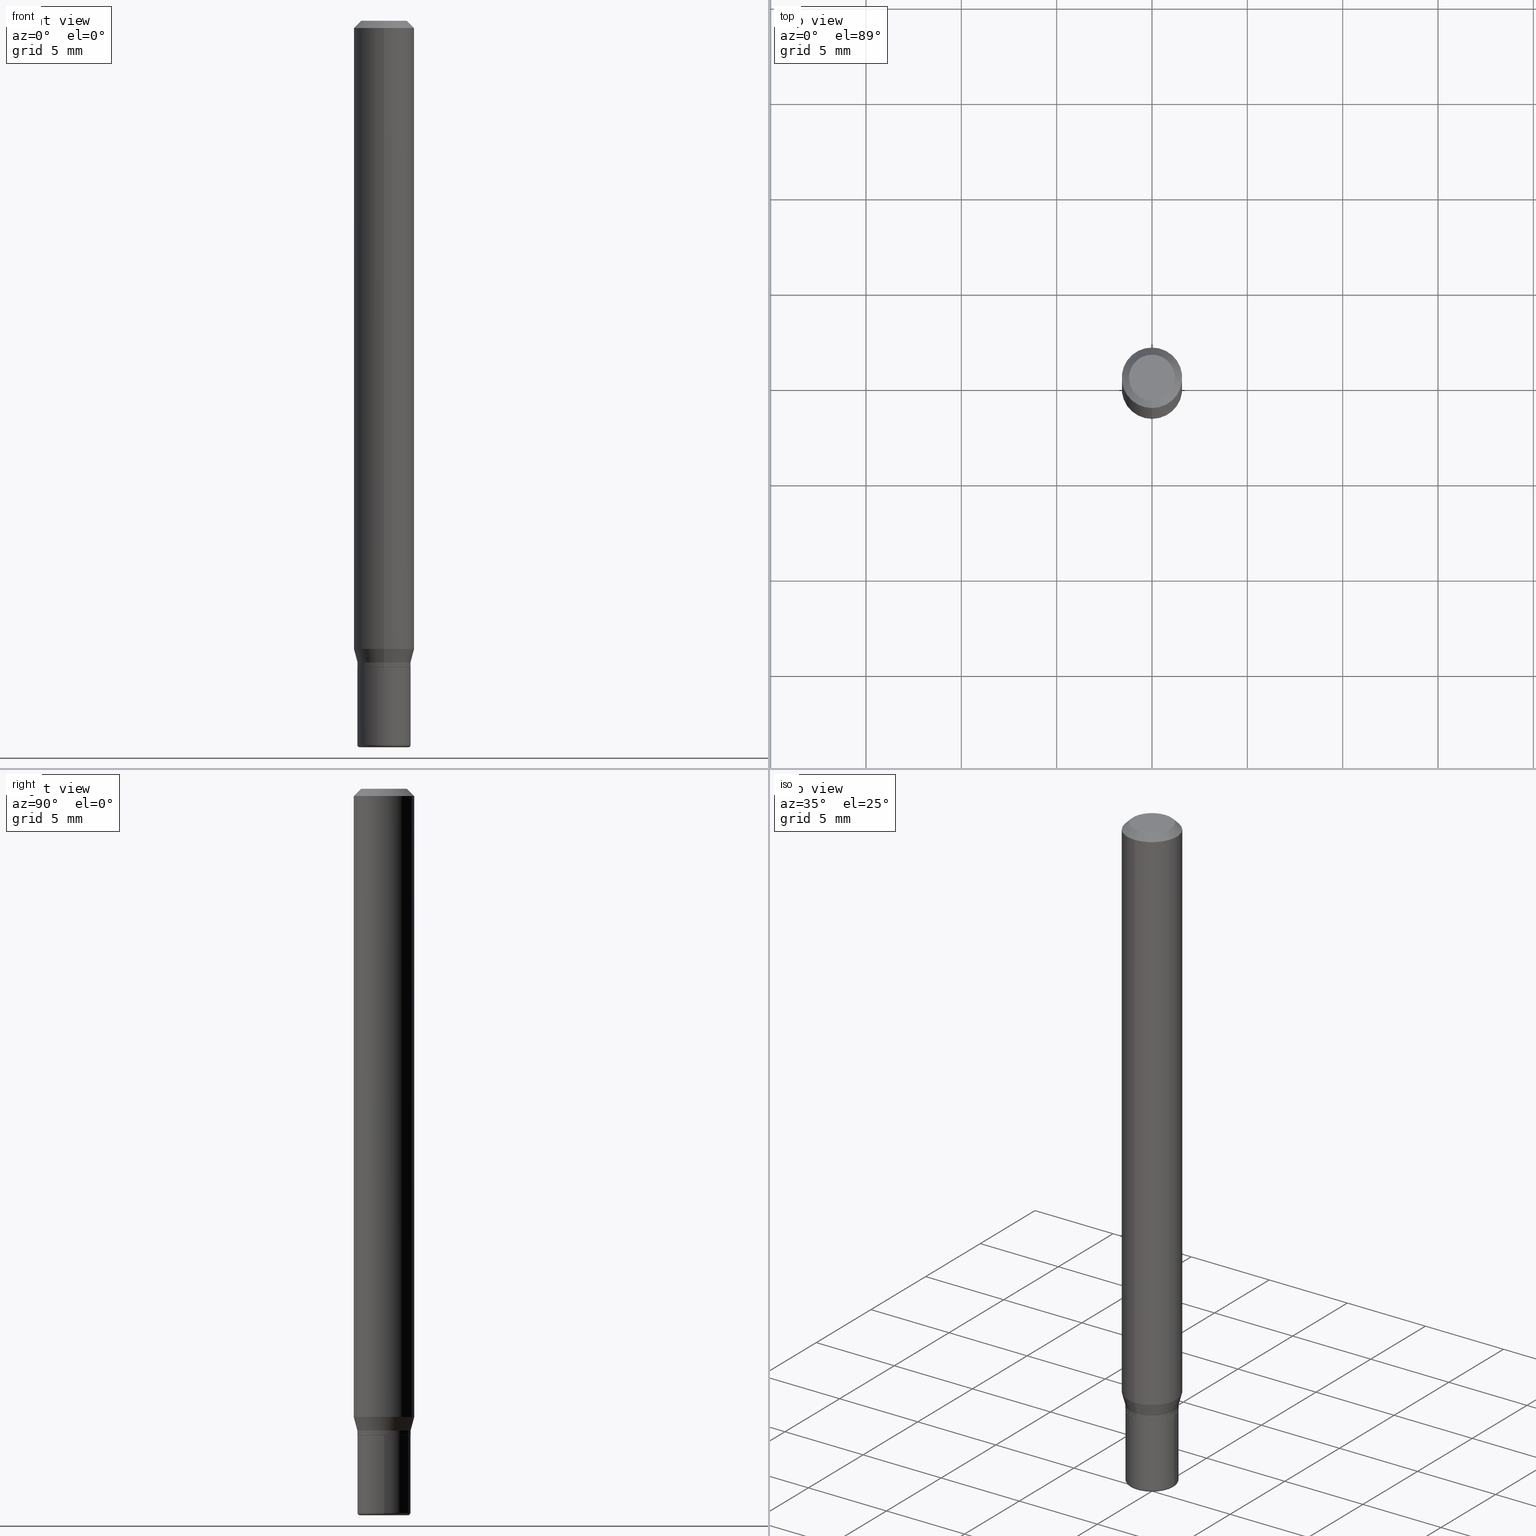
[diagram: canonical four-view strip — front | top / right | iso, engineering-drawing reading convention]
A machine part, canonical four-view strip (front | top / right | iso — engineering-drawing reading convention). The complete STEP part file that produces these views, byte-faithful:
ISO-10303-21;
HEADER;
FILE_DESCRIPTION (( 'STEP AP203' ),
    '1' );
FILE_NAME ('09096.STEP',
    '2024-02-29T22:05:15',
    ( '' ),
    ( '' ),
    'SwSTEP 2.0',
    'SolidWorks 2023',
    '' );
FILE_SCHEMA (( 'CONFIG_CONTROL_DESIGN' ));
ENDSEC;

DATA;
#1 = AXIS2_PLACEMENT_3D ( 'NONE', #233, #202, #466 ) ;
#2 = EDGE_LOOP ( 'NONE', ( #170, #485, #367, #459 ) ) ;
#3 = EDGE_LOOP ( 'NONE', ( #322, #10, #500, #210 ) ) ;
#4 = CYLINDRICAL_SURFACE ( 'NONE', #514, 0.06250000000000000000 ) ;
#5 = CIRCLE ( 'NONE', #376, 0.05450000000000009698 ) ;
#6 = CARTESIAN_POINT ( 'NONE',  ( 3.907985046680882364E-16, 0.05499999999999548306, -1.325000000000000844 ) ) ;
#7 = AXIS2_PLACEMENT_3D ( 'NONE', #481, #54, #406 ) ;
#8 = PRODUCT_RELATED_PRODUCT_CATEGORY ( 'detail', '', ( #272 ) ) ;
#9 = FACE_OUTER_BOUND ( 'NONE', #127, .T. ) ;
#10 = ORIENTED_EDGE ( 'NONE', *, *, #382, .T. ) ;
#11 = CARTESIAN_POINT ( 'NONE',  ( 3.240240083797181082E-29, -4.626221487171588322E-15, -1.325000000000000400 ) ) ;
#12 = PERSON_AND_ORGANIZATION_ROLE ( 'design_supplier' ) ;
#13 = ORIENTED_EDGE ( 'NONE', *, *, #47, .F. ) ;
#14 = DIRECTION ( 'NONE',  ( 6.982962677686265922E-15, 1.000000000000000000, -3.483106191921935554E-15 ) ) ;
#15 = APPLICATION_CONTEXT ( 'configuration controlled 3d designs of mechanical parts and assemblies' ) ;
#16 = PERSON_AND_ORGANIZATION_ROLE ( 'design_owner' ) ;
#17 = DIRECTION ( 'NONE',  ( -6.982962677686265133E-15, -1.000000000000000000, 4.966996352116832032E-15 ) ) ;
#18 = CLOSED_SHELL ( 'NONE', ( #418, #446, #248, #259, #279, #448, #408, #78, #477, #302, #108, #340 ) ) ;
#19 = VECTOR ( 'NONE', #178, 39.37007874015748143 ) ;
#20 = PERSON_AND_ORGANIZATION ( #29, #177 ) ;
#21 = CARTESIAN_POINT ( 'NONE',  ( 4.174438572590912774E-16, 0.05499999999999548306, -1.325000000000000844 ) ) ;
#22 = CALENDAR_DATE ( 2024, 29, 2 ) ;
#23 = CARTESIAN_POINT ( 'NONE',  ( 3.668196321279753512E-31, -5.237231872269617697E-17, -0.01499999999999970281 ) ) ;
#24 = EDGE_CURVE ( 'NONE', #89, #211, #445, .T. ) ;
#25 = APPLICATION_PROTOCOL_DEFINITION ( 'international standard', 'config_control_design', 1994, #195 ) ;
#26 = ORIENTED_EDGE ( 'NONE', *, *, #427, .T. ) ;
#27 = CARTESIAN_POINT ( 'NONE',  ( -3.773273898774340269E-16, -0.04750000000000000749, 4.390307876817926139E-16 ) ) ;
#28 = CONICAL_SURFACE ( 'NONE', #327, 0.06250000000000000000, 0.7853981633974488341 ) ;
#29 = PERSON ( 'UNSPECIFIED', 'UNSPECIFIED', 'UNSPECIFIED', ('UNSPECIFIED'), ('UNSPECIFIED'), ('UNSPECIFIED') ) ;
#30 = CIRCLE ( 'NONE', #401, 0.05450000000000009698 ) ;
#31 = LINE ( 'NONE', #200, #285 ) ;
#32 = VERTEX_POINT ( 'NONE', #185 ) ;
#33 = DIRECTION ( 'NONE',  ( -2.445464214186550861E-29, 3.491487914846480807E-15, 1.000000000000000000 ) ) ;
#34 = CARTESIAN_POINT ( 'NONE',  ( 3.840629472727447874E-16, 0.04750000000000000749, 1.073394357713768884E-16 ) ) ;
#35 = VECTOR ( 'NONE', #423, 39.37007874015748854 ) ;
#36 = TOROIDAL_SURFACE ( 'NONE', #245, 0.05000000000000000278, 0.005000000000000177046 ) ;
#37 = CONICAL_SURFACE ( 'NONE', #332, 0.05500000000000011130, 0.2617993877991481866 ) ;
#38 = FACE_OUTER_BOUND ( 'NONE', #288, .T. ) ;
#39 = ORIENTED_EDGE ( 'NONE', *, *, #384, .T. ) ;
#40 = CARTESIAN_POINT ( 'NONE',  ( 3.655975865246779122E-29, -5.219764601570503141E-15, -1.495000000000000107 ) ) ;
#41 = ORIENTED_EDGE ( 'NONE', *, *, #179, .F. ) ;
#42 = FACE_OUTER_BOUND ( 'NONE', #247, .T. ) ;
#43 = CIRCLE ( 'NONE', #7, 0.04999999999999999584 ) ;
#44 = ORIENTED_EDGE ( 'NONE', *, *, #317, .T. ) ;
#45 =( GEOMETRIC_REPRESENTATION_CONTEXT ( 3 ) GLOBAL_UNCERTAINTY_ASSIGNED_CONTEXT ( ( #306 ) ) GLOBAL_UNIT_ASSIGNED_CONTEXT ( ( #338, #352, #227 ) ) REPRESENTATION_CONTEXT ( 'NONE', 'WORKASPACE' ) );
#46 = ORIENTED_EDGE ( 'NONE', *, *, #122, .F. ) ;
#47 = EDGE_CURVE ( 'NONE', #168, #211, #223, .T. ) ;
#48 = DIRECTION ( 'NONE',  ( -6.982962677686265922E-15, -1.000000000000000000, 5.012565125989464495E-15 ) ) ;
#49 = EDGE_CURVE ( 'NONE', #168, #32, #387, .T. ) ;
#50 = DIRECTION ( 'NONE',  ( -6.982962677686265133E-15, -1.000000000000000000, 3.491487914846480413E-15 ) ) ;
#51 = EDGE_LOOP ( 'NONE', ( #465, #403 ) ) ;
#52 = DIRECTION ( 'NONE',  ( -6.982962677686265133E-15, -1.000000000000000000, 4.966996352116832032E-15 ) ) ;
#53 = AXIS2_PLACEMENT_3D ( 'NONE', #235, #511, #154 ) ;
#54 = DIRECTION ( 'NONE',  ( -2.445468806185136597E-29, 3.491481338843145583E-15, 1.000000000000000000 ) ) ;
#55 = CARTESIAN_POINT ( 'NONE',  ( 3.582686580359767159E-29, -5.359686688179454114E-15, -1.500000000000000444 ) ) ;
#56 = CARTESIAN_POINT ( 'NONE',  ( 3.907985046680557945E-16, 0.05500000000000010436, -1.920318353165568171E-16 ) ) ;
#57 = CALENDAR_DATE ( 2024, 29, 2 ) ;
#58 = DIRECTION ( 'NONE',  ( -2.438088387897960049E-29, 3.491481338843145188E-15, 1.000000000000000000 ) ) ;
#59 = CIRCLE ( 'NONE', #174, 0.05500000000000011130 ) ;
#60 = EDGE_CURVE ( 'NONE', #89, #333, #155, .T. ) ;
#61 = DIRECTION ( 'NONE',  ( -2.445468806185136597E-29, 3.491481338843145583E-15, 1.000000000000000000 ) ) ;
#62 = DIRECTION ( 'NONE',  ( -2.445468806185136877E-29, 3.491481338843145188E-15, 1.000000000000000000 ) ) ;
#63 = ORIENTED_EDGE ( 'NONE', *, *, #100, .F. ) ;
#64 = DIRECTION ( 'NONE',  ( 0.000000000000000000, 0.000000000000000000, 1.000000000000000000 ) ) ;
#65 = FACE_OUTER_BOUND ( 'NONE', #280, .T. ) ;
#66 = EDGE_CURVE ( 'NONE', #184, #366, #253, .T. ) ;
#67 = PERSON_AND_ORGANIZATION ( #29, #177 ) ;
#68 = CARTESIAN_POINT ( 'NONE',  ( 0.000000000000000000, 0.000000000000000000, 0.000000000000000000 ) ) ;
#69 = CALENDAR_DATE ( 2024, 29, 2 ) ;
#70 = DIRECTION ( 'NONE',  ( -6.982962677686265133E-15, -1.000000000000000000, 4.966996352116833610E-15 ) ) ;
#71 = DATE_AND_TIME ( #69, #277 ) ;
#72 = DIRECTION ( 'NONE',  ( -6.982962677686265133E-15, -1.000000000000000000, 4.966996352116832032E-15 ) ) ;
#73 = ORIENTED_EDGE ( 'NONE', *, *, #413, .F. ) ;
#74 = AXIS2_PLACEMENT_3D ( 'NONE', #334, #95, #48 ) ;
#75 = AXIS2_PLACEMENT_3D ( 'NONE', #392, #262, #468 ) ;
#76 = CC_DESIGN_APPROVAL ( #86, ( #269 ) ) ;
#77 = DIRECTION ( 'NONE',  ( 1.000000000000000000, -6.982962677686274599E-15, 0.000000000000000000 ) ) ;
#78 = ADVANCED_FACE ( 'NONE', ( #417 ), #28, .T. ) ;
#79 = VERTEX_POINT ( 'NONE', #499 ) ;
#80 = CARTESIAN_POINT ( 'NONE',  ( 0.05500000000000000028, -5.045190534628344107E-15, -1.335000000000000187 ) ) ;
#81 = ORIENTED_EDGE ( 'NONE', *, *, #114, .T. ) ;
#82 = ORIENTED_EDGE ( 'NONE', *, *, #179, .T. ) ;
#83 = AXIS2_PLACEMENT_3D ( 'NONE', #337, #220, #17 ) ;
#84 = ORIENTED_EDGE ( 'NONE', *, *, #402, .T. ) ;
#85 = CC_DESIGN_SECURITY_CLASSIFICATION ( #344, ( #269 ) ) ;
#86 = APPROVAL ( #192, 'UNSPECIFIED' ) ;
#87 = LINE ( 'NONE', #428, #205 ) ;
#88 = CARTESIAN_POINT ( 'NONE',  ( -0.05500000000000009742, 3.907985046680557945E-16, -2.705414299640202916E-30 ) ) ;
#89 = VERTEX_POINT ( 'NONE', #457 ) ;
#90 = CARTESIAN_POINT ( 'NONE',  ( -0.05500000000000000028, -4.549647589794996077E-15, -1.335000000000000187 ) ) ;
#91 = CARTESIAN_POINT ( 'NONE',  ( 4.440892098500945650E-16, 0.06249999999999995143, -0.01499999999999992138 ) ) ;
#92 = VERTEX_POINT ( 'NONE', #139 ) ;
#93 = DIRECTION ( 'NONE',  ( 1.000000000000000000, -6.982962677686265922E-15, 4.876176775795935793E-29 ) ) ;
#94 = TOROIDAL_SURFACE ( 'NONE', #157, 0.05000000000000000278, 0.005000000000000177046 ) ;
#95 = DIRECTION ( 'NONE',  ( -2.445464214186550861E-29, 3.491487914846480807E-15, 1.000000000000000000 ) ) ;
#96 = DIRECTION ( 'NONE',  ( 6.982962677686265922E-15, 1.000000000000000000, -3.491487914846480807E-15 ) ) ;
#97 = DIRECTION ( 'NONE',  ( -2.445464214186550861E-29, 3.491487914846480807E-15, 1.000000000000000000 ) ) ;
#98 = ADVANCED_FACE ( 'NONE', ( #460 ), #128, .F. ) ;
#99 = ORIENTED_EDGE ( 'NONE', *, *, #453, .F. ) ;
#100 = EDGE_CURVE ( 'NONE', #211, #168, #59, .T. ) ;
#101 = FACE_OUTER_BOUND ( 'NONE', #51, .T. ) ;
#102 = AXIS2_PLACEMENT_3D ( 'NONE', #489, #414, #290 ) ;
#103 = LOCAL_TIME ( 17, 5, 15.00000000000000000, #383 ) ;
#104 = CC_DESIGN_APPROVAL ( #208, ( #344 ) ) ;
#105 = DIRECTION ( 'NONE',  ( -2.445464214186550861E-29, 3.491487914846480807E-15, 1.000000000000000000 ) ) ;
#106 = SECURITY_CLASSIFICATION_LEVEL ( 'unclassified' ) ;
#107 = DIRECTION ( 'NONE',  ( -6.982962677686265133E-15, -1.000000000000000000, 3.491487914846480807E-15 ) ) ;
#108 = ADVANCED_FACE ( 'NONE', ( #216 ), #303, .T. ) ;
#109 = DIRECTION ( 'NONE',  ( 4.937700262164550409E-15, 0.7071067811865454633, -0.7071067811865495711 ) ) ;
#110 = CC_DESIGN_PERSON_AND_ORGANIZATION_ASSIGNMENT ( #20, #12, ( #269 ) ) ;
#111 = CIRCLE ( 'NONE', #410, 0.005000000000000177046 ) ;
#112 = DIRECTION ( 'NONE',  ( -6.982962677686265922E-15, -1.000000000000000000, 4.370956789862821150E-15 ) ) ;
#113 = CARTESIAN_POINT ( 'NONE',  ( 0.000000000000000000, 0.000000000000000000, 0.000000000000000000 ) ) ;
#114 = EDGE_CURVE ( 'NONE', #181, #364, #5, .T. ) ;
#115 = DIRECTION ( 'NONE',  ( 2.445464214186550581E-29, -3.491487914846480807E-15, -1.000000000000000000 ) ) ;
#116 = ORIENTED_EDGE ( 'NONE', *, *, #66, .F. ) ;
#117 = AXIS2_PLACEMENT_3D ( 'NONE', #221, #331, #50 ) ;
#118 = AXIS2_PLACEMENT_3D ( 'NONE', #183, #64, #493 ) ;
#119 = LINE ( 'NONE', #88, #167 ) ;
#120 = ORIENTED_EDGE ( 'NONE', *, *, #372, .F. ) ;
#121 = EDGE_LOOP ( 'NONE', ( #416, #124, #452, #13 ) ) ;
#122 = EDGE_CURVE ( 'NONE', #181, #89, #496, .T. ) ;
#123 = DIMENSIONAL_EXPONENTS ( 1.000000000000000000, 0.000000000000000000, 0.000000000000000000, 0.000000000000000000, 0.000000000000000000, 0.000000000000000000, 0.000000000000000000 ) ;
#124 = ORIENTED_EDGE ( 'NONE', *, *, #324, .T. ) ;
#125 = CONICAL_SURFACE ( 'NONE', #361, 0.05450000000000009698, 0.7853981633972775267 ) ;
#126 = CARTESIAN_POINT ( 'NONE',  ( 3.264694725939045834E-29, -4.661136366320052731E-15, -1.335000000000000187 ) ) ;
#127 = EDGE_LOOP ( 'NONE', ( #169, #370, #374, #316 ) ) ;
#128 = PLANE ( 'NONE',  #399 ) ;
#129 = FACE_OUTER_BOUND ( 'NONE', #175, .T. ) ;
#130 = ORIENTED_EDGE ( 'NONE', *, *, #264, .F. ) ;
#131 = EDGE_CURVE ( 'NONE', #92, #79, #504, .T. ) ;
#132 = DIRECTION ( 'NONE',  ( -2.445464214186550861E-29, 3.491487914846480807E-15, 1.000000000000000000 ) ) ;
#133 = PERSON_AND_ORGANIZATION ( #29, #177 ) ;
#134 = DIRECTION ( 'NONE',  ( -4.937700262163704750E-15, -0.7071067811864243380, 0.7071067811866706965 ) ) ;
#135 = CONICAL_SURFACE ( 'NONE', #146, 0.05500000000000011130, 0.2617993877991481866 ) ;
#136 = APPROVAL_PERSON_ORGANIZATION ( #196, #297, #137 ) ;
#137 = APPROVAL_ROLE ( '' ) ;
#138 = ORIENTED_EDGE ( 'NONE', *, *, #122, .T. ) ;
#139 = CARTESIAN_POINT ( 'NONE',  ( 0.05500000000000018069, -5.603827548843249703E-15, -1.495000000000000107 ) ) ;
#140 = CALENDAR_DATE ( 2024, 29, 2 ) ;
#141 = ORIENTED_EDGE ( 'NONE', *, *, #495, .F. ) ;
#142 = DIRECTION ( 'NONE',  ( -2.445464214186550861E-29, 3.491487914846480807E-15, 1.000000000000000000 ) ) ;
#143 = EDGE_CURVE ( 'NONE', #333, #168, #450, .T. ) ;
#144 = CYLINDRICAL_SURFACE ( 'NONE', #1, 0.06250000000000000000 ) ;
#145 = VECTOR ( 'NONE', #134, 39.37007874015748143 ) ;
#146 = AXIS2_PLACEMENT_3D ( 'NONE', #152, #312, #438 ) ;
#147 = APPROVAL_DATE_TIME ( #266, #297 ) ;
#148 = VERTEX_POINT ( 'NONE', #299 ) ;
#149 = ADVANCED_FACE ( 'NONE', ( #463 ), #36, .T. ) ;
#150 = MANIFOLD_SOLID_BREP ( 'Body-Move/Copy2[2]', #18 ) ;
#151 = DIRECTION ( 'NONE',  ( -2.445464214186550861E-29, 3.491487914846480807E-15, 1.000000000000000000 ) ) ;
#152 = CARTESIAN_POINT ( 'NONE',  ( 3.240240083797181082E-29, -4.626221487171588322E-15, -1.325000000000000400 ) ) ;
#153 = MANIFOLD_SOLID_BREP ( 'Body-Move/Copy2[1]', #244 ) ;
#154 = DIRECTION ( 'NONE',  ( 6.982962677686265922E-15, 1.000000000000000000, -3.483106191921935554E-15 ) ) ;
#155 = CIRCLE ( 'NONE', #275, 0.05500000000000009742 ) ;
#156 = APPROVAL_STATUS ( 'not_yet_approved' ) ;
#157 = AXIS2_PLACEMENT_3D ( 'NONE', #40, #159, #240 ) ;
#158 = LOCAL_TIME ( 17, 5, 15.00000000000000000, #464 ) ;
#159 = DIRECTION ( 'NONE',  ( -2.445468806185136597E-29, 3.491481338843145583E-15, 1.000000000000000000 ) ) ;
#160 = EDGE_CURVE ( 'NONE', #364, #333, #87, .T. ) ;
#161 = EDGE_LOOP ( 'NONE', ( #282, #321, #347, #116 ) ) ;
#162 = DATE_TIME_ROLE ( 'classification_date' ) ;
#163 = CARTESIAN_POINT ( 'NONE',  ( 3.316907271900976589E-16, 0.04750000000000000749, -2.925312009191548407E-17 ) ) ;
#164 = ORIENTED_EDGE ( 'NONE', *, *, #427, .F. ) ;
#165 = CARTESIAN_POINT ( 'NONE',  ( 3.890221478286884281E-16, 0.05449999999999543404, -1.335000000000000409 ) ) ;
#166 = ORIENTED_EDGE ( 'NONE', *, *, #131, .F. ) ;
#167 = VECTOR ( 'NONE', #515, 39.37007874015748143 ) ;
#168 = VERTEX_POINT ( 'NONE', #21 ) ;
#169 = ORIENTED_EDGE ( 'NONE', *, *, #49, .F. ) ;
#170 = ORIENTED_EDGE ( 'NONE', *, *, #171, .F. ) ;
#171 = EDGE_CURVE ( 'NONE', #336, #319, #255, .T. ) ;
#172 = ORIENTED_EDGE ( 'NONE', *, *, #49, .T. ) ;
#173 = CARTESIAN_POINT ( 'NONE',  ( -3.840629472727129865E-16, -0.05500000000000473954, -1.325000000000000178 ) ) ;
#174 = AXIS2_PLACEMENT_3D ( 'NONE', #11, #97, #52 ) ;
#175 = EDGE_LOOP ( 'NONE', ( #81, #354, #254, #46 ) ) ;
#176 = AXIS2_PLACEMENT_3D ( 'NONE', #68, #61, #359 ) ;
#177 = ORGANIZATION ( 'UNSPECIFIED', 'UNSPECIFIED', '' ) ;
#178 = DIRECTION ( 'NONE',  ( -2.445464214186550861E-29, 3.491487914846480807E-15, 1.000000000000000000 ) ) ;
#179 = EDGE_CURVE ( 'NONE', #148, #79, #458, .T. ) ;
#180 = CARTESIAN_POINT ( 'NONE',  ( 3.240240083797181082E-29, -4.626221487171588322E-15, -1.325000000000000400 ) ) ;
#181 = VERTEX_POINT ( 'NONE', #454 ) ;
#182 = DIRECTION ( 'NONE',  ( -2.445468806185136597E-29, 3.491481338843145583E-15, 1.000000000000000000 ) ) ;
#183 = CARTESIAN_POINT ( 'NONE',  ( 0.000000000000000000, 0.000000000000000000, 0.000000000000000000 ) ) ;
#184 = VERTEX_POINT ( 'NONE', #90 ) ;
#185 = CARTESIAN_POINT ( 'NONE',  ( 4.440892098500943678E-16, 0.06249999999999548972, -1.297009618943234521 ) ) ;
#186 = APPLICATION_PROTOCOL_DEFINITION ( 'international standard', 'config_control_design', 1994, #15 ) ;
#187 = CARTESIAN_POINT ( 'NONE',  ( 3.264700856257157760E-29, -4.661127587355599122E-15, -1.335000000000000187 ) ) ;
#188 = AXIS2_PLACEMENT_3D ( 'NONE', #113, #271, #443 ) ;
#189 = APPROVAL_ROLE ( '' ) ;
#190 = CARTESIAN_POINT ( 'NONE',  ( -6.680644145759176595E-45, 9.538225161093562798E-31, 2.731851117265847450E-16 ) ) ;
#191 = ADVANCED_FACE ( 'NONE', ( #360 ), #431, .T. ) ;
#192 = APPROVAL_STATUS ( 'not_yet_approved' ) ;
#193 = EDGE_LOOP ( 'NONE', ( #371, #172, #339, #215 ) ) ;
#194 = DIRECTION ( 'NONE',  ( -6.982962677686265922E-15, -1.000000000000000000, 3.483106191921935554E-15 ) ) ;
#195 = APPLICATION_CONTEXT ( 'configuration controlled 3d designs of mechanical parts and assemblies' ) ;
#196 = PERSON_AND_ORGANIZATION ( #29, #177 ) ;
#197 = ORIENTED_EDGE ( 'NONE', *, *, #372, .T. ) ;
#198 = FACE_OUTER_BOUND ( 'NONE', #121, .T. ) ;
#199 = CIRCLE ( 'NONE', #377, 0.05500000000000000028 ) ;
#200 = CARTESIAN_POINT ( 'NONE',  ( 4.364351673553919652E-16, 0.06249999999999995143, -0.01499999999999992138 ) ) ;
#201 = CARTESIAN_POINT ( 'NONE',  ( 3.171790608581413827E-29, -4.528493409979942154E-15, -1.297009618943234077 ) ) ;
#202 = DIRECTION ( 'NONE',  ( -2.445464214186550861E-29, 3.491487914846480807E-15, 1.000000000000000000 ) ) ;
#203 = EDGE_CURVE ( 'NONE', #326, #456, #276, .T. ) ;
#204 = ADVANCED_FACE ( 'NONE', ( #472 ), #503, .F. ) ;
#205 = VECTOR ( 'NONE', #390, 39.37007874015748143 ) ;
#206 = DIRECTION ( 'NONE',  ( -6.982962677686266711E-15, -1.000000000000000000, 3.491481338843145583E-15 ) ) ;
#207 = ORIENTED_EDGE ( 'NONE', *, *, #66, .T. ) ;
#208 = APPROVAL ( #156, 'UNSPECIFIED' ) ;
#209 = CARTESIAN_POINT ( 'NONE',  ( 3.264700856257157760E-29, -4.661127587355599122E-15, -1.335000000000000187 ) ) ;
#210 = ORIENTED_EDGE ( 'NONE', *, *, #329, .F. ) ;
#211 = VERTEX_POINT ( 'NONE', #397 ) ;
#212 = DIRECTION ( 'NONE',  ( -2.445468806185136597E-29, 3.491481338843145583E-15, 1.000000000000000000 ) ) ;
#213 = AXIS2_PLACEMENT_3D ( 'NONE', #201, #33, #112 ) ;
#214 = PRODUCT_DEFINITION ( 'UNKNOWN', '', #269, #434 ) ;
#215 = ORIENTED_EDGE ( 'NONE', *, *, #396, .F. ) ;
#216 = FACE_OUTER_BOUND ( 'NONE', #483, .T. ) ;
#217 = CARTESIAN_POINT ( 'NONE',  ( 0.000000000000000000, 0.000000000000000000, 0.000000000000000000 ) ) ;
#218 = VECTOR ( 'NONE', #478, 39.37007874015748143 ) ;
#219 = AXIS2_PLACEMENT_3D ( 'NONE', #236, #273, #455 ) ;
#220 = DIRECTION ( 'NONE',  ( -2.445464214186550861E-29, 3.491487914846480807E-15, 1.000000000000000000 ) ) ;
#221 = CARTESIAN_POINT ( 'NONE',  ( -6.680644145759176595E-45, 9.538225161093562798E-31, 2.731851117265847450E-16 ) ) ;
#222 = DIRECTION ( 'NONE',  ( -2.445464214186550861E-29, 3.491487914846480807E-15, 1.000000000000000000 ) ) ;
#223 = CIRCLE ( 'NONE', #83, 0.05500000000000011130 ) ;
#224 = CARTESIAN_POINT ( 'NONE',  ( -3.805714659338695356E-16, -0.05450000000000475298, -1.334999999999999742 ) ) ;
#225 = CONICAL_SURFACE ( 'NONE', #53, 0.06250000000000000000, 0.7853981633974488341 ) ;
#226 = AXIS2_PLACEMENT_3D ( 'NONE', #252, #421, #400 ) ;
#227 =( NAMED_UNIT ( * ) SI_UNIT ( $, .STERADIAN. ) SOLID_ANGLE_UNIT ( ) );
#228 = LINE ( 'NONE', #471, #238 ) ;
#229 = DATE_TIME_ROLE ( 'creation_date' ) ;
#230 = CARTESIAN_POINT ( 'NONE',  ( 3.907985046680889266E-16, 0.05499999999999551775, -1.334500000000000242 ) ) ;
#231 = EDGE_CURVE ( 'NONE', #319, #456, #31, .T. ) ;
#232 = FACE_OUTER_BOUND ( 'NONE', #237, .T. ) ;
#233 = CARTESIAN_POINT ( 'NONE',  ( 0.000000000000000000, 0.000000000000000000, 0.000000000000000000 ) ) ;
#234 = EDGE_CURVE ( 'NONE', #364, #181, #30, .T. ) ;
#235 = CARTESIAN_POINT ( 'NONE',  ( 3.668196321279753512E-31, -5.237231872269617697E-17, -0.01499999999999970281 ) ) ;
#236 = CARTESIAN_POINT ( 'NONE',  ( 3.668203209277706016E-29, -5.237222008264719754E-15, -1.500000000000000444 ) ) ;
#237 = EDGE_LOOP ( 'NONE', ( #44, #380, #350, #141 ) ) ;
#238 = VECTOR ( 'NONE', #512, 39.37007874015748143 ) ;
#239 = LOCAL_TIME ( 17, 5, 15.00000000000000000, #298 ) ;
#240 = DIRECTION ( 'NONE',  ( 1.000000000000000000, -6.982962677686274599E-15, 4.883557194083115704E-29 ) ) ;
#241 = DIRECTION ( 'NONE',  ( -2.445464214186550861E-29, 3.491487914846480807E-15, 1.000000000000000000 ) ) ;
#242 = ORIENTED_EDGE ( 'NONE', *, *, #231, .T. ) ;
#243 = EDGE_LOOP ( 'NONE', ( #73, #164, #242, #292 ) ) ;
#244 = CLOSED_SHELL ( 'NONE', ( #357, #437, #204, #191, #149, #98 ) ) ;
#245 = AXIS2_PLACEMENT_3D ( 'NONE', #260, #182, #293 ) ;
#246 = ORIENTED_EDGE ( 'NONE', *, *, #60, .T. ) ;
#247 = EDGE_LOOP ( 'NONE', ( #246, #274, #63, #517 ) ) ;
#248 = ADVANCED_FACE ( 'NONE', ( #301 ), #225, .T. ) ;
#249 = DIRECTION ( 'NONE',  ( -6.982962677686265133E-15, -1.000000000000000000, 3.491487914846480413E-15 ) ) ;
#250 = CARTESIAN_POINT ( 'NONE',  ( 3.655975865246779122E-29, -5.219764601570503141E-15, -1.495000000000000107 ) ) ;
#251 = DIRECTION ( 'NONE',  ( -2.445464214186550861E-29, 3.491487914846480807E-15, 1.000000000000000000 ) ) ;
#252 = CARTESIAN_POINT ( 'NONE',  ( 3.171790608581413827E-29, -4.528493409979942154E-15, -1.297009618943234077 ) ) ;
#253 = CIRCLE ( 'NONE', #449, 0.05500000000000000028 ) ;
#254 = ORIENTED_EDGE ( 'NONE', *, *, #60, .F. ) ;
#255 = CIRCLE ( 'NONE', #328, 0.04750000000000000749 ) ;
#256 = DIRECTION ( 'NONE',  ( 2.445464214186550861E-29, -3.491487914846480807E-15, -1.000000000000000000 ) ) ;
#257 = CARTESIAN_POINT ( 'NONE',  ( 3.655975865246779122E-29, -5.219764601570503141E-15, -1.495000000000000107 ) ) ;
#258 = LINE ( 'NONE', #349, #395 ) ;
#259 = ADVANCED_FACE ( 'NONE', ( #232 ), #144, .T. ) ;
#260 = CARTESIAN_POINT ( 'NONE',  ( 3.655975865246779122E-29, -5.219764601570503141E-15, -1.495000000000000107 ) ) ;
#261 = DIRECTION ( 'NONE',  ( -2.445464214186550861E-29, 3.491487914846480807E-15, 1.000000000000000000 ) ) ;
#262 = DIRECTION ( 'NONE',  ( -2.445464214186550581E-29, 3.491487914846480807E-15, 1.000000000000000000 ) ) ;
#263 = CIRCLE ( 'NONE', #304, 0.06250000000000000000 ) ;
#264 = EDGE_CURVE ( 'NONE', #32, #456, #228, .T. ) ;
#265 = CARTESIAN_POINT ( 'NONE',  ( -4.364351673553912750E-16, -0.06250000000000005551, -0.01499999999999948597 ) ) ;
#266 = DATE_AND_TIME ( #140, #239 ) ;
#267 = CARTESIAN_POINT ( 'NONE',  ( 3.840629472727772786E-16, 0.05499999999999534428, -1.335000000000000409 ) ) ;
#268 = FACE_OUTER_BOUND ( 'NONE', #193, .T. ) ;
#269 = PRODUCT_DEFINITION_FORMATION_WITH_SPECIFIED_SOURCE ( 'ANY', '', #272, .NOT_KNOWN. ) ;
#270 = CARTESIAN_POINT ( 'NONE',  ( 3.263471993831951420E-29, -4.659390622362628209E-15, -1.334500000000000020 ) ) ;
#271 = DIRECTION ( 'NONE',  ( -2.445464214186550861E-29, 3.491487914846480807E-15, 1.000000000000000000 ) ) ;
#272 = PRODUCT ( '09096', '09096', '', ( #386 ) ) ;
#273 = DIRECTION ( 'NONE',  ( -2.445468806185136597E-29, 3.491481338843145583E-15, 1.000000000000000000 ) ) ;
#274 = ORIENTED_EDGE ( 'NONE', *, *, #143, .T. ) ;
#275 = AXIS2_PLACEMENT_3D ( 'NONE', #345, #132, #341 ) ;
#276 = CIRCLE ( 'NONE', #295, 0.06250000000000000000 ) ;
#277 = LOCAL_TIME ( 17, 5, 15.00000000000000000, #310 ) ;
#278 = DIRECTION ( 'NONE',  ( 1.000000000000000000, -6.982962677686262766E-15, 0.000000000000000000 ) ) ;
#279 = ADVANCED_FACE ( 'NONE', ( #268 ), #135, .T. ) ;
#280 = EDGE_LOOP ( 'NONE', ( #409, #82, #166, #442 ) ) ;
#281 = CC_DESIGN_PERSON_AND_ORGANIZATION_ASSIGNMENT ( #424, #16, ( #272 ) ) ;
#282 = ORIENTED_EDGE ( 'NONE', *, *, #382, .F. ) ;
#283 = ORIENTED_EDGE ( 'NONE', *, *, #160, .F. ) ;
#284 = EDGE_CURVE ( 'NONE', #456, #326, #263, .T. ) ;
#285 = VECTOR ( 'NONE', #109, 39.37007874015748143 ) ;
#286 = DIRECTION ( 'NONE',  ( -2.445468806185136597E-29, 3.491481338843145583E-15, 1.000000000000000000 ) ) ;
#287 = DIRECTION ( 'NONE',  ( -2.445464214186550861E-29, 3.491487914846480807E-15, 1.000000000000000000 ) ) ;
#288 = EDGE_LOOP ( 'NONE', ( #26, #470 ) ) ;
#289 = CC_DESIGN_PERSON_AND_ORGANIZATION_ASSIGNMENT ( #133, #300, ( #344 ) ) ;
#290 = DIRECTION ( 'NONE',  ( -1.000000000000000000, 7.105427357601061812E-15, 0.000000000000000000 ) ) ;
#291 = DIRECTION ( 'NONE',  ( -2.445464214186550861E-29, 3.491487914846480807E-15, 1.000000000000000000 ) ) ;
#292 = ORIENTED_EDGE ( 'NONE', *, *, #284, .T. ) ;
#293 = DIRECTION ( 'NONE',  ( 1.000000000000000000, -6.982962677686274599E-15, 4.883557194083115704E-29 ) ) ;
#294 = CALENDAR_DATE ( 2024, 29, 2 ) ;
#295 = AXIS2_PLACEMENT_3D ( 'NONE', #305, #311, #433 ) ;
#296 = CARTESIAN_POINT ( 'NONE',  ( 3.264694725939045834E-29, -4.661136366320052731E-15, -1.335000000000000187 ) ) ;
#297 = APPROVAL ( #307, 'UNSPECIFIED' ) ;
#298 = COORDINATED_UNIVERSAL_TIME_OFFSET ( 5, 0, .BEHIND. ) ;
#299 = CARTESIAN_POINT ( 'NONE',  ( -0.04999999999999999584, -4.855458368643558124E-15, -1.500000000000000444 ) ) ;
#300 = PERSON_AND_ORGANIZATION_ROLE ( 'classification_officer' ) ;
#301 = FACE_OUTER_BOUND ( 'NONE', #2, .T. ) ;
#302 = ADVANCED_FACE ( 'NONE', ( #101 ), #476, .F. ) ;
#303 = CONICAL_SURFACE ( 'NONE', #74, 0.05450000000000009698, 0.7853981633972775267 ) ;
#304 = AXIS2_PLACEMENT_3D ( 'NONE', #23, #105, #194 ) ;
#305 = CARTESIAN_POINT ( 'NONE',  ( 3.668196321279753512E-31, -5.237231872269617697E-17, -0.01499999999999970281 ) ) ;
#306 = UNCERTAINTY_MEASURE_WITH_UNIT (LENGTH_MEASURE( 1.000000000000000082E-05 ), #338, 'distance_accuracy_value', 'NONE');
#307 = APPROVAL_STATUS ( 'not_yet_approved' ) ;
#308 = ORIENTED_EDGE ( 'NONE', *, *, #234, .T. ) ;
#309 = DIRECTION ( 'NONE',  ( -1.000000000000000000, 6.982962677686265922E-15, -4.876176775795935793E-29 ) ) ;
#310 = COORDINATED_UNIVERSAL_TIME_OFFSET ( 5, 0, .BEHIND. ) ;
#311 = DIRECTION ( 'NONE',  ( -2.445464214186550861E-29, 3.491487914846480807E-15, 1.000000000000000000 ) ) ;
#312 = DIRECTION ( 'NONE',  ( -2.445464214186550861E-29, 3.491487914846480807E-15, 1.000000000000000000 ) ) ;
#313 = AXIS2_PLACEMENT_3D ( 'NONE', #510, #151, #107 ) ;
#314 = DIRECTION ( 'NONE',  ( -2.445468806185136597E-29, 3.491481338843145583E-15, 1.000000000000000000 ) ) ;
#315 = DIRECTION ( 'NONE',  ( -6.982962677686265922E-15, -1.000000000000000000, 3.491487914846480807E-15 ) ) ;
#316 = ORIENTED_EDGE ( 'NONE', *, *, #461, .F. ) ;
#317 = EDGE_CURVE ( 'NONE', #494, #32, #486, .T. ) ;
#318 = CARTESIAN_POINT ( 'NONE',  ( -4.287811248607203282E-16, -0.06250000000000005551, -0.01499999999999948597 ) ) ;
#319 = VERTEX_POINT ( 'NONE', #34 ) ;
#320 = AXIS2_PLACEMENT_3D ( 'NONE', #257, #425, #348 ) ;
#321 = ORIENTED_EDGE ( 'NONE', *, *, #393, .T. ) ;
#322 = ORIENTED_EDGE ( 'NONE', *, *, #131, .T. ) ;
#323 = EDGE_LOOP ( 'NONE', ( #99, #120 ) ) ;
#324 = EDGE_CURVE ( 'NONE', #333, #89, #475, .T. ) ;
#325 = ORIENTED_EDGE ( 'NONE', *, *, #393, .F. ) ;
#326 = VERTEX_POINT ( 'NONE', #265 ) ;
#327 = AXIS2_PLACEMENT_3D ( 'NONE', #492, #256, #14 ) ;
#328 = AXIS2_PLACEMENT_3D ( 'NONE', #190, #501, #249 ) ;
#329 = EDGE_CURVE ( 'NONE', #92, #366, #351, .T. ) ;
#330 = CC_DESIGN_DATE_AND_TIME_ASSIGNMENT ( #513, #162, ( #344 ) ) ;
#331 = DIRECTION ( 'NONE',  ( -2.445464214186550861E-29, 3.491487914846480807E-15, 1.000000000000000000 ) ) ;
#332 = AXIS2_PLACEMENT_3D ( 'NONE', #180, #291, #72 ) ;
#333 = VERTEX_POINT ( 'NONE', #230 ) ;
#334 = CARTESIAN_POINT ( 'NONE',  ( 3.264694725939045834E-29, -4.661136366320052731E-15, -1.335000000000000187 ) ) ;
#335 = FACE_OUTER_BOUND ( 'NONE', #3, .T. ) ;
#336 = VERTEX_POINT ( 'NONE', #27 ) ;
#337 = CARTESIAN_POINT ( 'NONE',  ( 3.240240083797181082E-29, -4.626221487171588322E-15, -1.325000000000000400 ) ) ;
#338 =( CONVERSION_BASED_UNIT ( 'INCH', #342 ) LENGTH_UNIT ( ) NAMED_UNIT ( #123 ) );
#339 = ORIENTED_EDGE ( 'NONE', *, *, #317, .F. ) ;
#340 = ADVANCED_FACE ( 'NONE', ( #198 ), #356, .T. ) ;
#341 = DIRECTION ( 'NONE',  ( -6.982962677686265133E-15, -1.000000000000000000, 4.966996352116833610E-15 ) ) ;
#342 = LENGTH_MEASURE_WITH_UNIT ( LENGTH_MEASURE( 0.02539999999999999897 ), #498 );
#343 = AXIS2_PLACEMENT_3D ( 'NONE', #250, #314, #77 ) ;
#344 = SECURITY_CLASSIFICATION ( '', '', #106 ) ;
#345 = CARTESIAN_POINT ( 'NONE',  ( 3.263471993831951420E-29, -4.659390622362628209E-15, -1.334500000000000020 ) ) ;
#346 = DATE_AND_TIME ( #22, #103 ) ;
#347 = ORIENTED_EDGE ( 'NONE', *, *, #329, .T. ) ;
#348 = DIRECTION ( 'NONE',  ( 1.000000000000000000, -6.982962677686274599E-15, 0.000000000000000000 ) ) ;
#349 = CARTESIAN_POINT ( 'NONE',  ( -4.364351673553916201E-16, -0.06250000000000000000, 2.182179946779050504E-16 ) ) ;
#350 = ORIENTED_EDGE ( 'NONE', *, *, #203, .F. ) ;
#351 = LINE ( 'NONE', #398, #497 ) ;
#352 =( NAMED_UNIT ( * ) PLANE_ANGLE_UNIT ( ) SI_UNIT ( $, .RADIAN. ) );
#353 = CC_DESIGN_PERSON_AND_ORGANIZATION_ASSIGNMENT ( #432, #462, ( #214 ) ) ;
#354 = ORIENTED_EDGE ( 'NONE', *, *, #160, .T. ) ;
#355 = CIRCLE ( 'NONE', #117, 0.04750000000000000749 ) ;
#356 = CYLINDRICAL_SURFACE ( 'NONE', #313, 0.05500000000000010436 ) ;
#357 = ADVANCED_FACE ( 'NONE', ( #65 ), #94, .T. ) ;
#358 = DIRECTION ( 'NONE',  ( -6.982962677686265922E-15, -1.000000000000000000, 5.012565125989464495E-15 ) ) ;
#359 = DIRECTION ( 'NONE',  ( 1.000000000000000000, -6.982962677686266711E-15, 4.876176775795935793E-29 ) ) ;
#360 = FACE_OUTER_BOUND ( 'NONE', #161, .T. ) ;
#361 = AXIS2_PLACEMENT_3D ( 'NONE', #126, #287, #451 ) ;
#362 = CC_DESIGN_APPROVAL ( #297, ( #214 ) ) ;
#363 = CYLINDRICAL_SURFACE ( 'NONE', #188, 0.05500000000000010436 ) ;
#364 = VERTEX_POINT ( 'NONE', #165 ) ;
#365 = CARTESIAN_POINT ( 'NONE',  ( 0.000000000000000000, 0.000000000000000000, 0.000000000000000000 ) ) ;
#366 = VERTEX_POINT ( 'NONE', #80 ) ;
#367 = ORIENTED_EDGE ( 'NONE', *, *, #203, .T. ) ;
#368 = EDGE_LOOP ( 'NONE', ( #41, #197, #84, #325 ) ) ;
#369 = PRODUCT_DEFINITION_SHAPE ( 'NONE', 'NONE',  #214 ) ;
#370 = ORIENTED_EDGE ( 'NONE', *, *, #47, .T. ) ;
#371 = ORIENTED_EDGE ( 'NONE', *, *, #100, .T. ) ;
#372 = EDGE_CURVE ( 'NONE', #148, #407, #43, .T. ) ;
#373 = CARTESIAN_POINT ( 'NONE',  ( 0.04999999999999999584, -5.586370142149033090E-15, -1.500000000000000444 ) ) ;
#374 = ORIENTED_EDGE ( 'NONE', *, *, #396, .T. ) ;
#375 = DIRECTION ( 'NONE',  ( -6.982962677686265922E-15, -1.000000000000000000, 5.012565125989464495E-15 ) ) ;
#376 = AXIS2_PLACEMENT_3D ( 'NONE', #296, #222, #375 ) ;
#377 = AXIS2_PLACEMENT_3D ( 'NONE', #209, #212, #278 ) ;
#378 = DIRECTION ( 'NONE',  ( -4.851104656540966641E-15, -0.7071067811865503483, -0.7071067811865446862 ) ) ;
#379 = LOCAL_TIME ( 17, 5, 15.00000000000000000, #435 ) ;
#380 = ORIENTED_EDGE ( 'NONE', *, *, #264, .T. ) ;
#381 = DIRECTION ( 'NONE',  ( 1.000000000000000000, -6.982962677686262766E-15, 0.000000000000000000 ) ) ;
#382 = EDGE_CURVE ( 'NONE', #79, #184, #119, .T. ) ;
#383 = COORDINATED_UNIVERSAL_TIME_OFFSET ( 5, 0, .BEHIND. ) ;
#384 = EDGE_CURVE ( 'NONE', #366, #184, #199, .T. ) ;
#385 = CARTESIAN_POINT ( 'NONE',  ( -3.840629472727453298E-16, -0.05500000000000010436, 1.920318353165568171E-16 ) ) ;
#386 = MECHANICAL_CONTEXT ( 'NONE', #195, 'mechanical' ) ;
#387 = LINE ( 'NONE', #6, #35 ) ;
#388 = APPROVAL_DATE_TIME ( #505, #86 ) ;
#389 = CIRCLE ( 'NONE', #226, 0.06250000000000000000 ) ;
#390 = DIRECTION ( 'NONE',  ( 5.024295867787204109E-15, 0.7071067811864292230, 0.7071067811866658115 ) ) ;
#391 = DIRECTION ( 'NONE',  ( -2.445464214186550861E-29, 3.491487914846480807E-15, 1.000000000000000000 ) ) ;
#392 = CARTESIAN_POINT ( 'NONE',  ( 3.264694725939045834E-29, -4.661136366320052731E-15, -1.335000000000000187 ) ) ;
#393 = EDGE_CURVE ( 'NONE', #79, #92, #482, .T. ) ;
#394 = AXIS2_PLACEMENT_3D ( 'NONE', #270, #391, #70 ) ;
#395 = VECTOR ( 'NONE', #261, 39.37007874015748143 ) ;
#396 = EDGE_CURVE ( 'NONE', #211, #494, #490, .T. ) ;
#397 = CARTESIAN_POINT ( 'NONE',  ( -3.840629472727129865E-16, -0.05500000000000473954, -1.325000000000000178 ) ) ;
#398 = CARTESIAN_POINT ( 'NONE',  ( 0.05500000000000009742, -3.840629472727453298E-16, 2.681897226687769380E-30 ) ) ;
#399 = AXIS2_PLACEMENT_3D ( 'NONE', #55, #58, #93 ) ;
#400 = DIRECTION ( 'NONE',  ( -6.982962677686265922E-15, -1.000000000000000000, 4.370956789862821150E-15 ) ) ;
#401 = AXIS2_PLACEMENT_3D ( 'NONE', #436, #142, #358 ) ;
#402 = EDGE_CURVE ( 'NONE', #407, #92, #111, .T. ) ;
#403 = ORIENTED_EDGE ( 'NONE', *, *, #234, .F. ) ;
#404 = APPROVAL_DATE_TIME ( #71, #208 ) ;
#405 = CYLINDRICAL_SURFACE ( 'NONE', #420, 0.05500000000000009742 ) ;
#406 = DIRECTION ( 'NONE',  ( 1.000000000000000000, -6.982962677686275388E-15, 0.000000000000000000 ) ) ;
#407 = VERTEX_POINT ( 'NONE', #373 ) ;
#408 = ADVANCED_FACE ( 'NONE', ( #444 ), #4, .T. ) ;
#409 = ORIENTED_EDGE ( 'NONE', *, *, #453, .T. ) ;
#410 = AXIS2_PLACEMENT_3D ( 'NONE', #415, #206, #479 ) ;
#411 = AXIS2_PLACEMENT_3D ( 'NONE', #163, #115, #96 ) ;
#412 = ORIENTED_EDGE ( 'NONE', *, *, #324, .F. ) ;
#413 = EDGE_CURVE ( 'NONE', #336, #326, #441, .T. ) ;
#414 = DIRECTION ( 'NONE',  ( 7.105427357601001859E-15, 1.000000000000000000, -3.491481338843145583E-15 ) ) ;
#415 = CARTESIAN_POINT ( 'NONE',  ( 0.05000000000000000278, -5.568912735454817265E-15, -1.495000000000000107 ) ) ;
#416 = ORIENTED_EDGE ( 'NONE', *, *, #143, .F. ) ;
#417 = FACE_OUTER_BOUND ( 'NONE', #243, .T. ) ;
#418 = ADVANCED_FACE ( 'NONE', ( #42 ), #363, .T. ) ;
#419 = CC_DESIGN_PERSON_AND_ORGANIZATION_ASSIGNMENT ( #469, #502, ( #269 ) ) ;
#420 = AXIS2_PLACEMENT_3D ( 'NONE', #217, #487, #518 ) ;
#421 = DIRECTION ( 'NONE',  ( -2.445464214186550861E-29, 3.491487914846480807E-15, 1.000000000000000000 ) ) ;
#422 = APPROVAL_PERSON_ORGANIZATION ( #426, #86, #189 ) ;
#423 = DIRECTION ( 'NONE',  ( 1.839019923739585721E-15, 0.2588190451025229044, 0.9659258262890676461 ) ) ;
#424 = PERSON_AND_ORGANIZATION ( #29, #177 ) ;
#425 = DIRECTION ( 'NONE',  ( -2.445468806185136597E-29, 3.491481338843145583E-15, 1.000000000000000000 ) ) ;
#426 = PERSON_AND_ORGANIZATION ( #29, #177 ) ;
#427 = EDGE_CURVE ( 'NONE', #319, #336, #355, .T. ) ;
#428 = CARTESIAN_POINT ( 'NONE',  ( 3.872457909892878309E-16, 0.05449999999999543404, -1.335000000000000409 ) ) ;
#429 = CARTESIAN_POINT ( 'NONE',  ( -4.364351673553597205E-16, -0.06250000000000451028, -1.297009618943233855 ) ) ;
#430 = CIRCLE ( 'NONE', #219, 0.04999999999999999584 ) ;
#431 = CYLINDRICAL_SURFACE ( 'NONE', #176, 0.05500000000000009742 ) ;
#432 = PERSON_AND_ORGANIZATION ( #29, #177 ) ;
#433 = DIRECTION ( 'NONE',  ( -6.982962677686265922E-15, -1.000000000000000000, 3.483106191921935554E-15 ) ) ;
#434 = DESIGN_CONTEXT ( 'detailed design', #15, 'design' ) ;
#435 = COORDINATED_UNIVERSAL_TIME_OFFSET ( 5, 0, .BEHIND. ) ;
#436 = CARTESIAN_POINT ( 'NONE',  ( 3.264694725939045834E-29, -4.661136366320052731E-15, -1.335000000000000187 ) ) ;
#437 = ADVANCED_FACE ( 'NONE', ( #335 ), #405, .T. ) ;
#438 = DIRECTION ( 'NONE',  ( -6.982962677686265133E-15, -1.000000000000000000, 4.966996352116832032E-15 ) ) ;
#439 = DIRECTION ( 'NONE',  ( 2.438088387897960049E-29, -3.491481338843145188E-15, -1.000000000000000000 ) ) ;
#440 = APPROVAL_ROLE ( '' ) ;
#441 = LINE ( 'NONE', #318, #506 ) ;
#442 = ORIENTED_EDGE ( 'NONE', *, *, #402, .F. ) ;
#443 = DIRECTION ( 'NONE',  ( -6.982962677686265133E-15, -1.000000000000000000, 3.491487914846480807E-15 ) ) ;
#444 = FACE_OUTER_BOUND ( 'NONE', #491, .T. ) ;
#445 = LINE ( 'NONE', #385, #480 ) ;
#446 = ADVANCED_FACE ( 'NONE', ( #129 ), #125, .T. ) ;
#447 = ORIENTED_EDGE ( 'NONE', *, *, #495, .T. ) ;
#448 = ADVANCED_FACE ( 'NONE', ( #9 ), #37, .T. ) ;
#449 = AXIS2_PLACEMENT_3D ( 'NONE', #187, #286, #381 ) ;
#450 = LINE ( 'NONE', #56, #19 ) ;
#451 = DIRECTION ( 'NONE',  ( -6.982962677686265922E-15, -1.000000000000000000, 5.012565125989464495E-15 ) ) ;
#452 = ORIENTED_EDGE ( 'NONE', *, *, #24, .T. ) ;
#453 = EDGE_CURVE ( 'NONE', #407, #148, #430, .T. ) ;
#454 = CARTESIAN_POINT ( 'NONE',  ( -3.805714659338695356E-16, -0.05450000000000475298, -1.334999999999999742 ) ) ;
#455 = DIRECTION ( 'NONE',  ( 1.000000000000000000, -6.982962677686275388E-15, 0.000000000000000000 ) ) ;
#456 = VERTEX_POINT ( 'NONE', #91 ) ;
#457 = CARTESIAN_POINT ( 'NONE',  ( -3.840629472727120990E-16, -0.05500000000000467015, -1.334499999999999575 ) ) ;
#458 = CIRCLE ( 'NONE', #102, 0.005000000000000177046 ) ;
#459 = ORIENTED_EDGE ( 'NONE', *, *, #231, .F. ) ;
#460 = FACE_OUTER_BOUND ( 'NONE', #323, .T. ) ;
#461 = EDGE_CURVE ( 'NONE', #32, #494, #389, .T. ) ;
#462 = PERSON_AND_ORGANIZATION_ROLE ( 'creator' ) ;
#463 = FACE_OUTER_BOUND ( 'NONE', #368, .T. ) ;
#464 = COORDINATED_UNIVERSAL_TIME_OFFSET ( 5, 0, .BEHIND. ) ;
#465 = ORIENTED_EDGE ( 'NONE', *, *, #114, .F. ) ;
#466 = DIRECTION ( 'NONE',  ( -6.982962677686265922E-15, -1.000000000000000000, 3.491487914846480807E-15 ) ) ;
#467 = AXIS2_PLACEMENT_3D ( 'NONE', #267, #439, #309 ) ;
#468 = DIRECTION ( 'NONE',  ( -6.982962677686265922E-15, -1.000000000000000000, 3.491487914846480807E-15 ) ) ;
#469 = PERSON_AND_ORGANIZATION ( #29, #177 ) ;
#470 = ORIENTED_EDGE ( 'NONE', *, *, #171, .T. ) ;
#471 = CARTESIAN_POINT ( 'NONE',  ( 4.440892098500625669E-16, 0.06250000000000000000, -2.182179946779050504E-16 ) ) ;
#472 = FACE_OUTER_BOUND ( 'NONE', #484, .T. ) ;
#473 = SHAPE_DEFINITION_REPRESENTATION ( #369, #474 ) ;
#474 = ADVANCED_BREP_SHAPE_REPRESENTATION ( '09096', ( #153, #150, #118 ), #45 ) ;
#475 = CIRCLE ( 'NONE', #394, 0.05500000000000009742 ) ;
#476 = PLANE ( 'NONE',  #75 ) ;
#477 = ADVANCED_FACE ( 'NONE', ( #38 ), #516, .F. ) ;
#478 = DIRECTION ( 'NONE',  ( -1.807323732225316334E-15, -0.2588190451025161876, 0.9659258262890694224 ) ) ;
#479 = DIRECTION ( 'NONE',  ( 1.000000000000000000, -6.982962677686280121E-15, 0.000000000000000000 ) ) ;
#480 = VECTOR ( 'NONE', #251, 39.37007874015748143 ) ;
#481 = CARTESIAN_POINT ( 'NONE',  ( 3.668203209277706016E-29, -5.237222008264719754E-15, -1.500000000000000444 ) ) ;
#482 = CIRCLE ( 'NONE', #343, 0.05500000000000018069 ) ;
#483 = EDGE_LOOP ( 'NONE', ( #283, #308, #138, #412 ) ) ;
#484 = EDGE_LOOP ( 'NONE', ( #39, #207 ) ) ;
#485 = ORIENTED_EDGE ( 'NONE', *, *, #413, .T. ) ;
#486 = CIRCLE ( 'NONE', #213, 0.06250000000000000000 ) ;
#487 = DIRECTION ( 'NONE',  ( -2.445468806185136597E-29, 3.491481338843145583E-15, 1.000000000000000000 ) ) ;
#488 = ORIENTED_EDGE ( 'NONE', *, *, #461, .T. ) ;
#489 = CARTESIAN_POINT ( 'NONE',  ( -0.05000000000000000278, -4.864493233690452733E-15, -1.495000000000000107 ) ) ;
#490 = LINE ( 'NONE', #173, #218 ) ;
#491 = EDGE_LOOP ( 'NONE', ( #130, #488, #447, #507 ) ) ;
#492 = CARTESIAN_POINT ( 'NONE',  ( 3.668196321279753512E-31, -5.237231872269617697E-17, -0.01499999999999970281 ) ) ;
#493 = DIRECTION ( 'NONE',  ( 1.000000000000000000, 0.000000000000000000, 0.000000000000000000 ) ) ;
#494 = VERTEX_POINT ( 'NONE', #429 ) ;
#495 = EDGE_CURVE ( 'NONE', #494, #326, #258, .T. ) ;
#496 = LINE ( 'NONE', #224, #145 ) ;
#497 = VECTOR ( 'NONE', #62, 39.37007874015748143 ) ;
#498 =( LENGTH_UNIT ( ) NAMED_UNIT ( * ) SI_UNIT ( $, .METRE. ) );
#499 = CARTESIAN_POINT ( 'NONE',  ( -0.05500000000000018069, -4.549647589794995288E-15, -1.495000000000000107 ) ) ;
#500 = ORIENTED_EDGE ( 'NONE', *, *, #384, .F. ) ;
#501 = DIRECTION ( 'NONE',  ( -2.445464214186550861E-29, 3.491487914846480807E-15, 1.000000000000000000 ) ) ;
#502 = PERSON_AND_ORGANIZATION_ROLE ( 'creator' ) ;
#503 = PLANE ( 'NONE',  #467 ) ;
#504 = CIRCLE ( 'NONE', #320, 0.05500000000000018069 ) ;
#505 = DATE_AND_TIME ( #57, #379 ) ;
#506 = VECTOR ( 'NONE', #378, 39.37007874015748143 ) ;
#507 = ORIENTED_EDGE ( 'NONE', *, *, #284, .F. ) ;
#508 = APPROVAL_PERSON_ORGANIZATION ( #67, #208, #440 ) ;
#509 = CC_DESIGN_DATE_AND_TIME_ASSIGNMENT ( #346, #229, ( #214 ) ) ;
#510 = CARTESIAN_POINT ( 'NONE',  ( 0.000000000000000000, 0.000000000000000000, 0.000000000000000000 ) ) ;
#511 = DIRECTION ( 'NONE',  ( 2.445464214186550861E-29, -3.491487914846480807E-15, -1.000000000000000000 ) ) ;
#512 = DIRECTION ( 'NONE',  ( -2.445464214186550861E-29, 3.491487914846480807E-15, 1.000000000000000000 ) ) ;
#513 = DATE_AND_TIME ( #294, #158 ) ;
#514 = AXIS2_PLACEMENT_3D ( 'NONE', #365, #241, #315 ) ;
#515 = DIRECTION ( 'NONE',  ( -2.445468806185136877E-29, 3.491481338843145188E-15, 1.000000000000000000 ) ) ;
#516 = PLANE ( 'NONE',  #411 ) ;
#517 = ORIENTED_EDGE ( 'NONE', *, *, #24, .F. ) ;
#518 = DIRECTION ( 'NONE',  ( 1.000000000000000000, -6.982962677686266711E-15, 4.876176775795935793E-29 ) ) ;
ENDSEC;
END-ISO-10303-21;
